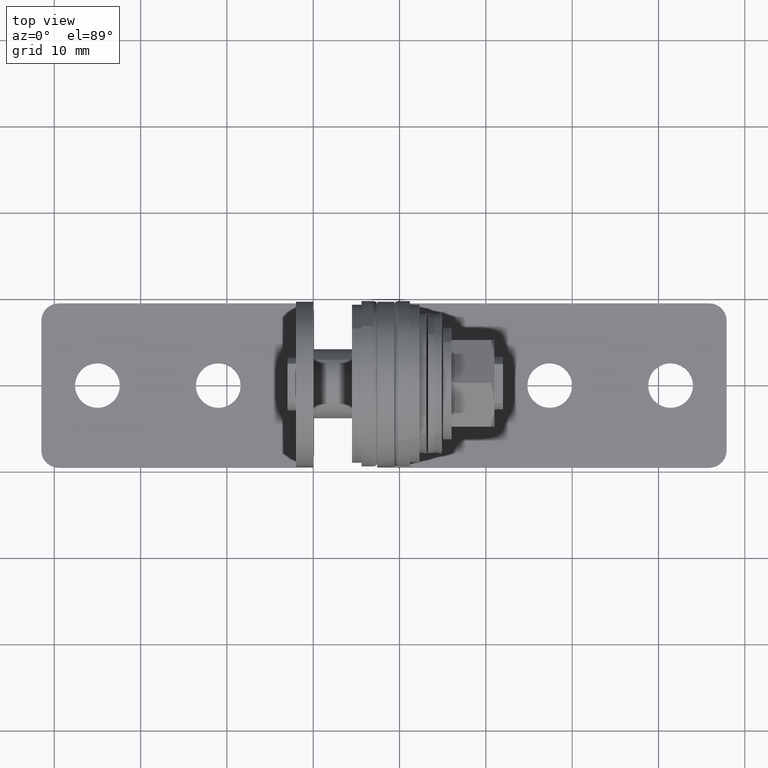
[diagram: clean part render]
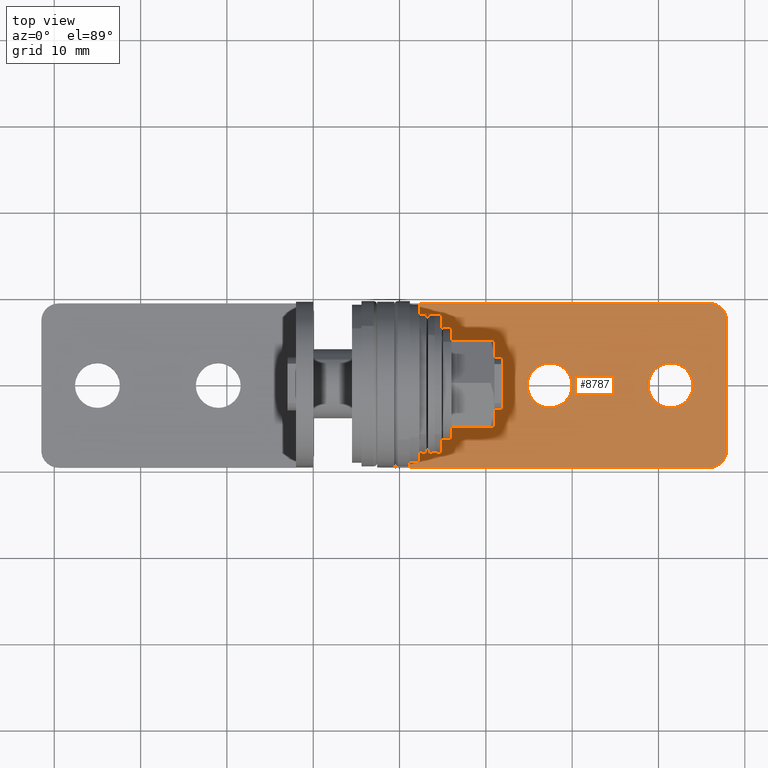
[diagram: same view with one face highlighted and labeled with its STEP entity id]
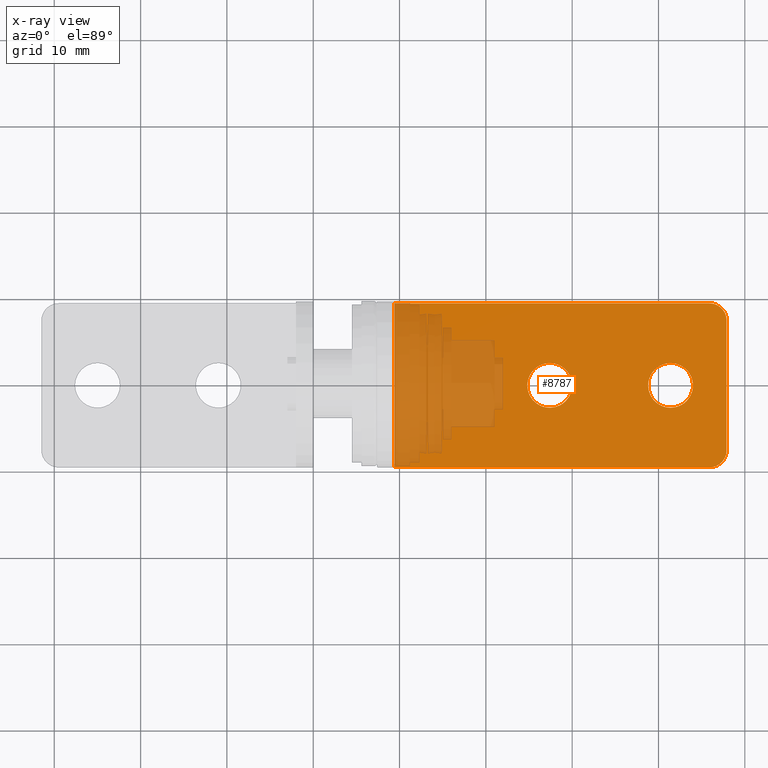
[diagram: x-ray of the same camera — body ghosted, the highlighted face saturated]
A machine part, top view. The second image highlights one B-rep face of the part: STEP entity #8787.
The next image is the same camera in x-ray: the body ghosted, the highlighted face saturated — about 24% of this face is hidden behind the body in this view.
In plain terms, the highlighted face is a freeform B-spline surface patch.
Its self-contained STEP definition (entity closure, byte-faithful):
#7890=CARTESIAN_POINT('',(39.545548671361871,1.822364295536703,-10.999999999995680));
#7891=VERTEX_POINT('',#7890);
#7897=CARTESIAN_POINT('',(38.799999999999997,0.0,-10.999999999995680));
#7898=VERTEX_POINT('',#7897);
#7899=CARTESIAN_POINT('',(39.545548671361871,1.822364295536703,-10.999999999995680));
#7900=CARTESIAN_POINT('',(39.316764247209207,1.589989296860218,-10.999999999995710));
#7901=CARTESIAN_POINT('',(39.037895450039187,1.171318415701235,-10.999999999995630));
#7902=CARTESIAN_POINT('',(38.835958011420033,0.525848973991946,-10.999999999995749));
#7903=CARTESIAN_POINT('',(38.799972398311390,0.178798382881484,-10.999999999995660));
#7904=CARTESIAN_POINT('',(38.799999999999997,0.0,-10.999999999995680));
#7905=B_SPLINE_CURVE_WITH_KNOTS('',3,(#7899,#7900,#7901,#7902,#7903,#7904),.UNSPECIFIED.,.F.,.U.,(4,1,1,4),(0.000000024907353,0.978142070598600,1.482966191045217,2.019358472236156),.UNSPECIFIED.);
#7906=EDGE_CURVE('',#7891,#7898,#7905,.T.);
#7908=CARTESIAN_POINT('',(41.400001043185618,-2.599999999999791,-10.999999999995680));
#7909=VERTEX_POINT('',#7908);
#7910=CARTESIAN_POINT('',(38.799999999999997,0.0,-10.999999999995680));
#7911=CARTESIAN_POINT('',(38.799964511425060,-0.202077217944789,-10.999999999995669));
#7912=CARTESIAN_POINT('',(38.851059555458718,-0.638124721662771,-10.999999999995710));
#7913=CARTESIAN_POINT('',(39.094358035741543,-1.269025139561357,-10.999999999995630));
#7914=CARTESIAN_POINT('',(39.541893799397002,-1.872518059193729,-10.999999999995691));
#7915=CARTESIAN_POINT('',(40.130199354084603,-2.308852751296818,-10.999999999995691));
#7916=CARTESIAN_POINT('',(40.783155514074217,-2.551403795758234,-10.999999999995620));
#7917=CARTESIAN_POINT('',(41.197925416103303,-2.600035502971081,-10.999999999995801));
#7918=CARTESIAN_POINT('',(41.400001043185618,-2.599999999999791,-10.999999999995680));
#7919=B_SPLINE_CURVE_WITH_KNOTS('',3,(#7910,#7911,#7912,#7913,#7914,#7915,#7916,#7917,#7918),.UNSPECIFIED.,.F.,.U.,(4,1,1,1,1,1,4),(0.000000103507021,0.606228421714027,1.308195648029372,2.010172875903851,2.839716873133571,3.477871387586330,4.084096663445961),.UNSPECIFIED.);
#7920=EDGE_CURVE('',#7898,#7909,#7919,.T.);
#7922=CARTESIAN_POINT('',(43.254451328638133,-1.822364295536706,-10.999999999995680));
#7923=VERTEX_POINT('',#7922);
#7924=CARTESIAN_POINT('',(41.400001043185618,-2.599999999999791,-10.999999999995680));
#7925=CARTESIAN_POINT('',(41.636595606757638,-2.600085297048183,-10.999999999995669));
#7926=CARTESIAN_POINT('',(42.088202925167309,-2.537920261288909,-10.999999999995699));
#7927=CARTESIAN_POINT('',(42.727819554850662,-2.269739126241802,-10.999999999995699));
#7928=CARTESIAN_POINT('',(43.088669010129003,-1.991157993050198,-10.999999999995669));
#7929=CARTESIAN_POINT('',(43.254451328638133,-1.822364295536706,-10.999999999995680));
#7930=B_SPLINE_CURVE_WITH_KNOTS('',3,(#7924,#7925,#7926,#7927,#7928,#7929),.UNSPECIFIED.,.F.,.U.,(4,1,1,4),(0.000000027832202,0.709758876054116,1.354977926042747,2.064736774295124),.UNSPECIFIED.);
#7931=EDGE_CURVE('',#7909,#7923,#7930,.T.);
#8019=CARTESIAN_POINT('',(44.0,0.0,-10.999999999995680));
#8020=VERTEX_POINT('',#8019);
#8021=CARTESIAN_POINT('',(43.254451328638133,-1.822364295536706,-10.999999999995680));
#8022=CARTESIAN_POINT('',(43.446242086193131,-1.627416037894478,-10.999999999995669));
#8023=CARTESIAN_POINT('',(43.717843526627242,-1.245645667141076,-10.999999999995699));
#8024=CARTESIAN_POINT('',(43.951232422106671,-0.609988094218767,-10.999999999995680));
#8025=CARTESIAN_POINT('',(44.000046429759223,-0.210354168275359,-10.999999999995691));
#8026=CARTESIAN_POINT('',(44.0,0.0,-10.999999999995680));
#8027=B_SPLINE_CURVE_WITH_KNOTS('',3,(#8021,#8022,#8023,#8024,#8025,#8026),.UNSPECIFIED.,.F.,.U.,(4,1,1,4),(0.000000024906299,0.820370702233477,1.388305182644573,2.019358472236196),.UNSPECIFIED.);
#8028=EDGE_CURVE('',#7923,#8020,#8027,.T.);
#8030=CARTESIAN_POINT('',(41.399998956814393,2.599999999999791,-10.999999999995680));
#8031=VERTEX_POINT('',#8030);
#8032=CARTESIAN_POINT('',(44.0,0.0,-10.999999999995680));
#8033=CARTESIAN_POINT('',(44.000298614358641,0.319123676610074,-10.999999999995669));
#8034=CARTESIAN_POINT('',(43.918705644069327,0.754971420949368,-10.999999999995699));
#8035=CARTESIAN_POINT('',(43.666705828047213,1.296156989116458,-10.999999999995641));
#8036=CARTESIAN_POINT('',(43.391286648615122,1.703005518233221,-10.999999999995721));
#8037=CARTESIAN_POINT('',(42.948947305204477,2.124216923063063,-10.999999999995660));
#8038=CARTESIAN_POINT('',(42.271952387360187,2.496859380823846,-10.999999999995680));
#8039=CARTESIAN_POINT('',(41.719107179996470,2.600281636033040,-10.999999999995710));
#8040=CARTESIAN_POINT('',(41.399998956814393,2.599999999999791,-10.999999999995680));
#8041=B_SPLINE_CURVE_WITH_KNOTS('',3,(#8032,#8033,#8034,#8035,#8036,#8037,#8038,#8039,#8040),.UNSPECIFIED.,.F.,.U.,(4,1,1,1,1,1,4),(0.000000103531758,0.957209341582912,1.308195648044260,1.786814776965009,2.424911113624826,3.126887090176568,4.084096663445952),.UNSPECIFIED.);
#8042=EDGE_CURVE('',#8020,#8031,#8041,.T.);
#8044=CARTESIAN_POINT('',(41.399998956814393,2.599999999999791,-10.999999999995680));
#8045=CARTESIAN_POINT('',(41.066571975450657,2.600309270428665,-10.999999999995710));
#8046=CARTESIAN_POINT('',(40.561402958073543,2.501441617999425,-10.999999999995630));
#8047=CARTESIAN_POINT('',(39.949221369403340,2.179493416241355,-10.999999999995740));
#8048=CARTESIAN_POINT('',(39.673664949993672,1.952779184382245,-10.999999999995600));
#8049=CARTESIAN_POINT('',(39.545548671361871,1.822364295536703,-10.999999999995680));
#8050=B_SPLINE_CURVE_WITH_KNOTS('',3,(#8044,#8045,#8046,#8047,#8048,#8049),.UNSPECIFIED.,.F.,.U.,(4,1,1,4),(0.000000027829182,1.000123236049436,1.516290869260826,2.064736774295145),.UNSPECIFIED.);
#8051=EDGE_CURVE('',#8031,#7891,#8050,.T.);
#8088=CARTESIAN_POINT('',(25.545548671361878,1.822364295536707,-10.999999999995680));
#8089=VERTEX_POINT('',#8088);
#8095=CARTESIAN_POINT('',(24.800000000000001,0.0,-10.999999999995680));
#8096=VERTEX_POINT('',#8095);
#8097=CARTESIAN_POINT('',(25.545548671361878,1.822364295536707,-10.999999999995680));
#8098=CARTESIAN_POINT('',(25.420207838241549,1.694855470098513,-10.999999999995669));
#8099=CARTESIAN_POINT('',(25.202623049393111,1.422099097587763,-10.999999999995691));
#8100=CARTESIAN_POINT('',(24.894240450800101,0.820177365446976,-10.999999999995680));
#8101=CARTESIAN_POINT('',(24.799692600326921,0.326098927913604,-10.999999999995680));
#8102=CARTESIAN_POINT('',(24.800000000000001,0.0,-10.999999999995680));
#8103=B_SPLINE_CURVE_WITH_KNOTS('',3,(#8097,#8098,#8099,#8100,#8101,#8102),.UNSPECIFIED.,.F.,.U.,(4,1,1,4),(0.000000024906459,0.536392306097943,1.041216426569353,2.019358472236169),.UNSPECIFIED.);
#8104=EDGE_CURVE('',#8089,#8096,#8103,.T.);
#8106=CARTESIAN_POINT('',(27.400001043185618,-2.599999999999791,-10.999999999995680));
#8107=VERTEX_POINT('',#8106);
#8108=CARTESIAN_POINT('',(24.800000000000001,0.0,-10.999999999995680));
#8109=CARTESIAN_POINT('',(24.799700394610049,-0.319118217704131,-10.999999999995641));
#8110=CARTESIAN_POINT('',(24.897213566124051,-0.840029264131095,-10.999999999995850));
#8111=CARTESIAN_POINT('',(25.226573445060389,-1.465346295550999,-10.999999999995429));
#8112=CARTESIAN_POINT('',(25.566416278473490,-1.864167449253121,-10.999999999995900));
#8113=CARTESIAN_POINT('',(26.013974328072401,-2.227028443843445,-10.999999999995561));
#8114=CARTESIAN_POINT('',(26.613015570487651,-2.519379457915332,-10.999999999995550));
#8115=CARTESIAN_POINT('',(27.134101433537310,-2.600124354201998,-10.999999999995991));
#8116=CARTESIAN_POINT('',(27.400001043185618,-2.599999999999791,-10.999999999995680));
#8117=B_SPLINE_CURVE_WITH_KNOTS('',3,(#8108,#8109,#8110,#8111,#8112,#8113,#8114,#8115,#8116),.UNSPECIFIED.,.F.,.U.,(4,1,1,1,1,1,4),(0.000000103515372,0.957209341571640,1.563448550618644,2.105852585210982,2.520649709781822,3.286428172682430,4.084096663445962),.UNSPECIFIED.);
#8118=EDGE_CURVE('',#8096,#8107,#8117,.T.);
#8120=CARTESIAN_POINT('',(29.254451328638119,-1.822364295536706,-10.999999999995680));
#8121=VERTEX_POINT('',#8120);
#8122=CARTESIAN_POINT('',(27.400001043185618,-2.599999999999791,-10.999999999995680));
#8123=CARTESIAN_POINT('',(27.636592759584769,-2.600077689043281,-10.999999999995691));
#8124=CARTESIAN_POINT('',(28.045188592484141,-2.543824535587039,-10.999999999995650));
#8125=CARTESIAN_POINT('',(28.689476874182990,-2.292276590365583,-10.999999999995721));
#8126=CARTESIAN_POINT('',(29.058578628980730,-2.021924196198687,-10.999999999995650));
#8127=CARTESIAN_POINT('',(29.254451328638119,-1.822364295536706,-10.999999999995680));
#8128=B_SPLINE_CURVE_WITH_KNOTS('',3,(#8122,#8123,#8124,#8125,#8126,#8127),.UNSPECIFIED.,.F.,.U.,(4,1,1,4),(0.000000027829980,0.709758876052380,1.225930714458947,2.064736774295121),.UNSPECIFIED.);
#8129=EDGE_CURVE('',#8107,#8121,#8128,.T.);
#8218=CARTESIAN_POINT('',(30.0,0.0,-10.999999999995680));
#8219=VERTEX_POINT('',#8218);
#8220=CARTESIAN_POINT('',(29.254451328638119,-1.822364295536706,-10.999999999995680));
#8221=CARTESIAN_POINT('',(29.365033627887058,-1.709848166490342,-10.999999999995710));
#8222=CARTESIAN_POINT('',(29.585698925413240,-1.440097507741202,-10.999999999995660));
#8223=CARTESIAN_POINT('',(29.901730156984780,-0.841206081324341,-10.999999999995710));
#8224=CARTESIAN_POINT('',(30.000312020337290,-0.326098180996064,-10.999999999995669));
#8225=CARTESIAN_POINT('',(30.0,0.0,-10.999999999995680));
#8226=B_SPLINE_CURVE_WITH_KNOTS('',3,(#8220,#8221,#8222,#8223,#8224,#8225),.UNSPECIFIED.,.F.,.U.,(4,1,1,4),(0.000000024908134,0.473286967381811,1.041216426570215,2.019358472236166),.UNSPECIFIED.);
#8227=EDGE_CURVE('',#8121,#8219,#8226,.T.);
#8229=CARTESIAN_POINT('',(27.399998956814390,2.599999999999791,-10.999999999995680));
#8230=VERTEX_POINT('',#8229);
#8231=CARTESIAN_POINT('',(30.0,0.0,-10.999999999995680));
#8232=CARTESIAN_POINT('',(30.000007797432559,0.159531787194713,-10.999999999995680));
#8233=CARTESIAN_POINT('',(29.966650605155181,0.521150932368026,-10.999999999995680));
#8234=CARTESIAN_POINT('',(29.811256431552970,1.022298761687816,-10.999999999995691));
#8235=CARTESIAN_POINT('',(29.545663371439840,1.497883168781314,-10.999999999995680));
#8236=CARTESIAN_POINT('',(29.164291555668939,1.945638143861924,-10.999999999995691));
#8237=CARTESIAN_POINT('',(28.639647677788819,2.320000471813093,-10.999999999995710));
#8238=CARTESIAN_POINT('',(28.016849930043989,2.551411368056907,-10.999999999995600));
#8239=CARTESIAN_POINT('',(27.602074684133839,2.600035730242829,-10.999999999995779));
#8240=CARTESIAN_POINT('',(27.399998956814390,2.599999999999791,-10.999999999995680));
#8241=B_SPLINE_CURVE_WITH_KNOTS('',3,(#8231,#8232,#8233,#8234,#8235,#8236,#8237,#8238,#8239,#8240),.UNSPECIFIED.,.F.,.U.,(4,1,1,1,1,1,1,4),(0.000000103514464,0.478603413479036,1.084838432902617,1.563448550618014,2.105852585210379,2.839716873135078,3.477871387586473,4.084096663445960),.UNSPECIFIED.);
#8242=EDGE_CURVE('',#8219,#8230,#8241,.T.);
#8244=CARTESIAN_POINT('',(27.399998956814390,2.599999999999791,-10.999999999995680));
#8245=CARTESIAN_POINT('',(27.120385062294702,2.600160114356091,-10.999999999995691));
#8246=CARTESIAN_POINT('',(26.615042772182651,2.517668119338804,-10.999999999995691));
#8247=CARTESIAN_POINT('',(25.990944623323951,2.213923392845960,-10.999999999995710));
#8248=CARTESIAN_POINT('',(25.673670619641499,1.952767804492656,-10.999999999995630));
#8249=CARTESIAN_POINT('',(25.545548671361878,1.822364295536707,-10.999999999995680));
#8250=B_SPLINE_CURVE_WITH_KNOTS('',3,(#8244,#8245,#8246,#8247,#8248,#8249),.UNSPECIFIED.,.F.,.U.,(4,1,1,4),(0.000000027829952,0.838806087633332,1.516290869260903,2.064736774295129),.UNSPECIFIED.);
#8251=EDGE_CURVE('',#8230,#8089,#8250,.T.);
#8264=CARTESIAN_POINT('',(9.400000000000000,-9.500000000000000,-11.0));
#8265=VERTEX_POINT('',#8264);
#8271=CARTESIAN_POINT('',(9.400000000000102,9.500000000000000,-11.0));
#8272=VERTEX_POINT('',#8271);
#8273=CARTESIAN_POINT('',(9.400000000000000,-9.500000000000000,-11.0));
#8274=CARTESIAN_POINT('',(9.400000000000102,9.500000000000000,-11.0));
#8275=QUASI_UNIFORM_CURVE('',1,(#8273,#8274),.UNSPECIFIED.,.F.,.U.);
#8276=EDGE_CURVE('',#8265,#8272,#8275,.T.);
#8404=CARTESIAN_POINT('',(45.900000000000013,-9.500000000000000,-11.0));
#8405=VERTEX_POINT('',#8404);
#8406=CARTESIAN_POINT('',(47.899999999999999,-7.500000000000090,-11.0));
#8407=VERTEX_POINT('',#8406);
#8408=CARTESIAN_POINT('',(45.900000000000013,-9.500000000000000,-11.0));
#8409=CARTESIAN_POINT('',(46.063624282539372,-9.500039378084603,-11.0));
#8410=CARTESIAN_POINT('',(46.341760336753943,-9.465659164061771,-11.000000000000011));
#8411=CARTESIAN_POINT('',(46.792167392920263,-9.310783270813200,-10.999999999999989));
#8412=CARTESIAN_POINT('',(47.169449229394019,-9.071867489297196,-11.000000000000050));
#8413=CARTESIAN_POINT('',(47.486855310336267,-8.738391994328655,-10.999999999999890));
#8414=CARTESIAN_POINT('',(47.680357227102789,-8.432803685766169,-11.000000000000099));
#8415=CARTESIAN_POINT('',(47.849926145117870,-8.023534816544689,-10.999999999999980));
#8416=CARTESIAN_POINT('',(47.900113923174693,-7.712728912758795,-10.999999999999980));
#8417=CARTESIAN_POINT('',(47.899999999999999,-7.500000000000090,-11.0));
#8418=B_SPLINE_CURVE_WITH_KNOTS('',3,(#8408,#8409,#8410,#8411,#8412,#8413,#8414,#8415,#8416,#8417),.UNSPECIFIED.,.F.,.U.,(4,1,1,1,1,1,1,4),(0.000000054412393,0.490874752770195,0.834507428881762,1.423581817504256,1.816261475137032,2.208983504591829,2.503523754813644,3.141671488669997),.UNSPECIFIED.);
#8419=EDGE_CURVE('',#8405,#8407,#8418,.T.);
#8482=CARTESIAN_POINT('',(45.900000000000013,9.500000000000000,-11.0));
#8483=VERTEX_POINT('',#8482);
#8489=CARTESIAN_POINT('',(47.899999999999999,7.499999999999920,-11.0));
#8490=VERTEX_POINT('',#8489);
#8491=CARTESIAN_POINT('',(47.899999999999999,7.499999999999920,-11.0));
#8492=CARTESIAN_POINT('',(47.900113691369569,7.712725678857834,-10.999999999999989));
#8493=CARTESIAN_POINT('',(47.844650506517787,8.056265378202909,-11.000000000000030));
#8494=CARTESIAN_POINT('',(47.664701966078013,8.462089757548544,-10.999999999999970));
#8495=CARTESIAN_POINT('',(47.445957148762879,8.789507016617069,-11.000000000000050));
#8496=CARTESIAN_POINT('',(47.166201437061773,9.069286824810716,-10.999999999999940));
#8497=CARTESIAN_POINT('',(46.832799447230236,9.280354461386327,-11.000000000000060));
#8498=CARTESIAN_POINT('',(46.423537238110029,9.449926616979251,-11.000000000000041));
#8499=CARTESIAN_POINT('',(46.112727715172063,9.500113484865331,-10.999999999999980));
#8500=CARTESIAN_POINT('',(45.900000000000013,9.500000000000000,-11.0));
#8501=B_SPLINE_CURVE_WITH_KNOTS('',3,(#8491,#8492,#8493,#8494,#8495,#8496,#8497,#8498,#8499,#8500),.UNSPECIFIED.,.F.,.U.,(4,1,1,1,1,1,1,4),(0.000000054410362,0.638149096913602,1.030871407058835,1.325409096002303,1.816261475135592,2.208983504590751,2.503523754812889,3.141671488670276),.UNSPECIFIED.);
#8502=EDGE_CURVE('',#8490,#8483,#8501,.T.);
#8684=CARTESIAN_POINT('',(47.899999999999999,7.499999999999920,-11.0));
#8685=CARTESIAN_POINT('',(47.899999999999999,-7.500000000000090,-11.0));
#8686=QUASI_UNIFORM_CURVE('',1,(#8684,#8685),.UNSPECIFIED.,.F.,.U.);
#8687=EDGE_CURVE('',#8490,#8407,#8686,.T.);
#8738=CARTESIAN_POINT('',(9.400000000000000,-9.500000000000000,-11.0));
#8739=CARTESIAN_POINT('',(45.900000000000013,-9.500000000000000,-11.0));
#8740=QUASI_UNIFORM_CURVE('',1,(#8738,#8739),.UNSPECIFIED.,.F.,.U.);
#8741=EDGE_CURVE('',#8265,#8405,#8740,.T.);
#8754=CARTESIAN_POINT('',(7.476925074620470,-10.449049963174311,-11.0));
#8755=CARTESIAN_POINT('',(49.823075958030003,-10.449049963174311,-11.0));
#8756=CARTESIAN_POINT('',(7.476925074620470,10.449050472794029,-11.0));
#8757=CARTESIAN_POINT('',(49.823075958030003,10.449050472794029,-11.0));
#8758=B_SPLINE_SURFACE_WITH_KNOTS('',1,1,((#8754,#8756),(#8755,#8757)),.UNSPECIFIED.,.F.,.F.,.U.,(2,2),(2,2),(0.0,42.346150883409528),(0.0,20.898100435968342),.UNSPECIFIED.);
#8759=ORIENTED_EDGE('',*,*,#8687,.F.);
#8760=ORIENTED_EDGE('',*,*,#8502,.T.);
#8761=CARTESIAN_POINT('',(9.400000000000102,9.500000000000000,-11.0));
#8762=CARTESIAN_POINT('',(45.900000000000013,9.500000000000000,-11.0));
#8763=QUASI_UNIFORM_CURVE('',1,(#8761,#8762),.UNSPECIFIED.,.F.,.U.);
#8764=EDGE_CURVE('',#8272,#8483,#8763,.T.);
#8765=ORIENTED_EDGE('',*,*,#8764,.F.);
#8766=ORIENTED_EDGE('',*,*,#8276,.F.);
#8767=ORIENTED_EDGE('',*,*,#8741,.T.);
#8768=ORIENTED_EDGE('',*,*,#8419,.T.);
#8769=EDGE_LOOP('',(#8759,#8760,#8765,#8766,#8767,#8768));
#8770=FACE_OUTER_BOUND('',#8769,.T.);
#8771=ORIENTED_EDGE('',*,*,#8242,.F.);
#8772=ORIENTED_EDGE('',*,*,#8227,.F.);
#8773=ORIENTED_EDGE('',*,*,#8129,.F.);
#8774=ORIENTED_EDGE('',*,*,#8118,.F.);
#8775=ORIENTED_EDGE('',*,*,#8104,.F.);
#8776=ORIENTED_EDGE('',*,*,#8251,.F.);
#8777=EDGE_LOOP('',(#8771,#8772,#8773,#8774,#8775,#8776));
#8778=FACE_BOUND('',#8777,.T.);
#8779=ORIENTED_EDGE('',*,*,#8042,.F.);
#8780=ORIENTED_EDGE('',*,*,#8028,.F.);
#8781=ORIENTED_EDGE('',*,*,#7931,.F.);
#8782=ORIENTED_EDGE('',*,*,#7920,.F.);
#8783=ORIENTED_EDGE('',*,*,#7906,.F.);
#8784=ORIENTED_EDGE('',*,*,#8051,.F.);
#8785=EDGE_LOOP('',(#8779,#8780,#8781,#8782,#8783,#8784));
#8786=FACE_BOUND('',#8785,.T.);
#8787=ADVANCED_FACE('',(#8770,#8778,#8786),#8758,.T.);